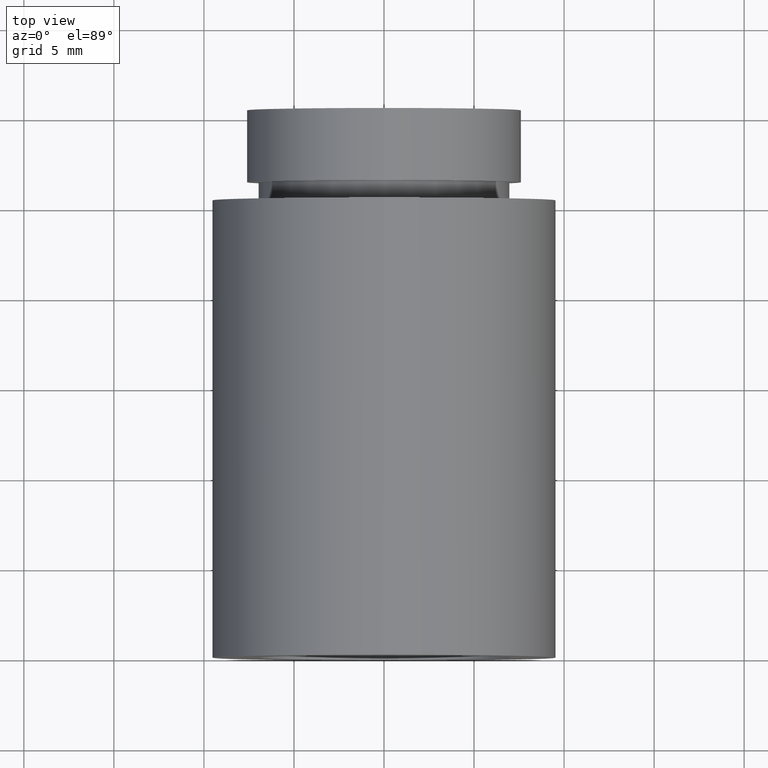
[diagram: clean part render]
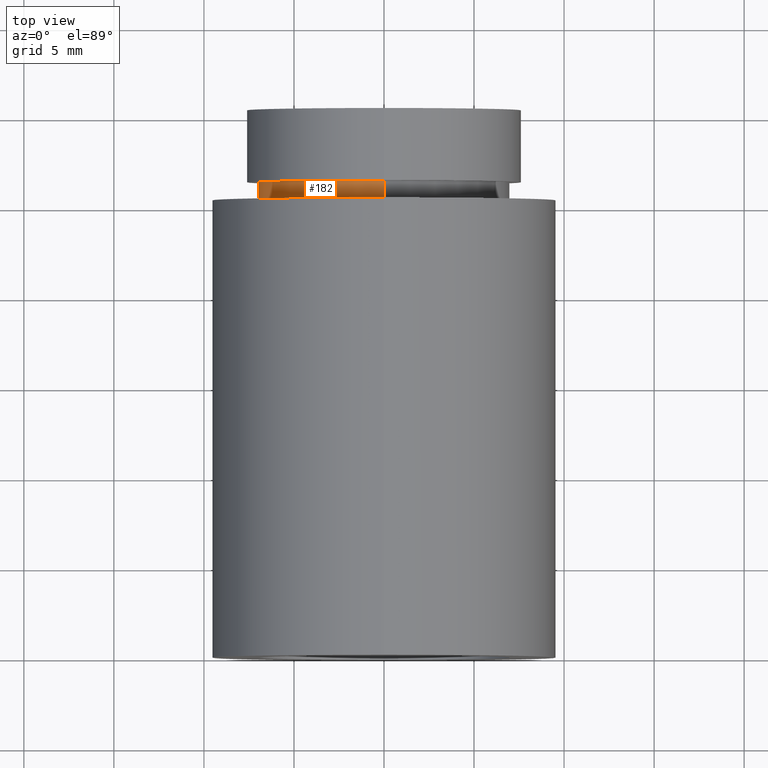
[diagram: same view with one face highlighted and labeled with its STEP entity id]
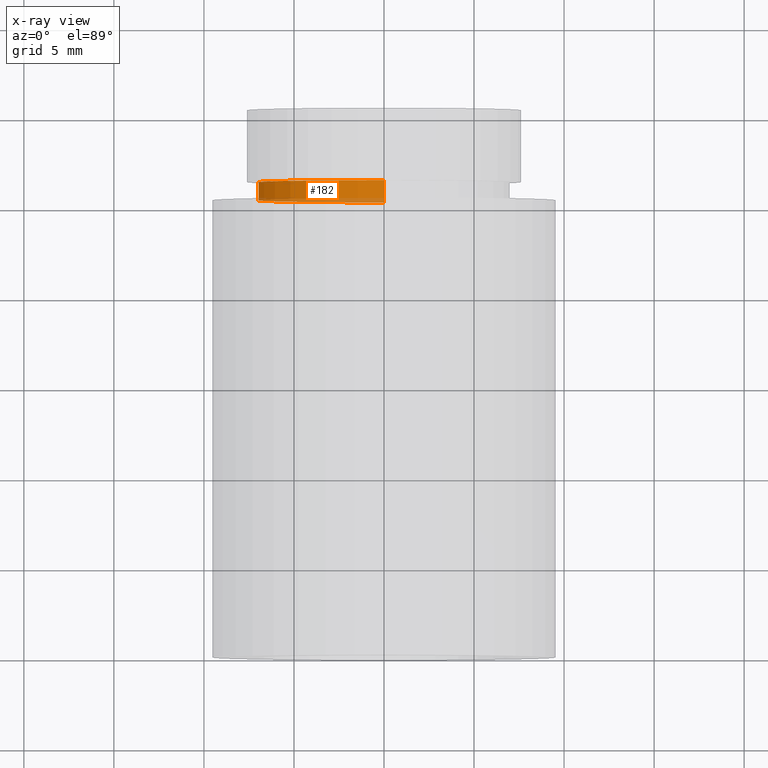
[diagram: x-ray of the same camera — body ghosted, the highlighted face saturated]
A machine part, top view. The second image highlights one B-rep face of the part: STEP entity #182.
The next image is the same camera in x-ray: the body ghosted, the highlighted face saturated — about 17% of this face is hidden behind the body in this view.
In plain terms, the highlighted cylindrical surface (partial cylindrical patch) has radius 7 mm, axis along (-0, 1, -0).
Its self-contained STEP definition (entity closure, byte-faithful):
#4 = VECTOR ( 'NONE', #300, 1000.000000000000000 ) ;
#14 = CARTESIAN_POINT ( 'NONE',  ( 0.0000000000000000000, 26.39999999999997700, 0.0000000000000000000 ) ) ;
#35 = DIRECTION ( 'NONE',  ( 0.0000000000000000000, 0.0000000000000000000, 1.000000000000000000 ) ) ;
#61 = DIRECTION ( 'NONE',  ( 0.0000000000000000000, 0.0000000000000000000, 1.000000000000000000 ) ) ;
#71 = EDGE_CURVE ( 'NONE', #258, #616, #601, .T. ) ;
#87 = AXIS2_PLACEMENT_3D ( 'NONE', #583, #346, #253 ) ;
#114 = EDGE_CURVE ( 'NONE', #204, #132, #317, .T. ) ;
#128 = CARTESIAN_POINT ( 'NONE',  ( 0.0000000000000000000, 25.39999999999997700, 7.000000000000015100 ) ) ;
#132 = VERTEX_POINT ( 'NONE', #533 ) ;
#142 = EDGE_LOOP ( 'NONE', ( #452, #536, #320, #394 ) ) ;
#182 = ADVANCED_FACE ( 'NONE', ( #611 ), #553, .T. ) ;
#193 = CARTESIAN_POINT ( 'NONE',  ( 8.572527594031490900E-016, 26.39999999999997700, -7.000000000000015100 ) ) ;
#204 = VERTEX_POINT ( 'NONE', #128 ) ;
#216 = DIRECTION ( 'NONE',  ( -0.0000000000000000000, 1.000000000000000000, -0.0000000000000000000 ) ) ;
#237 = AXIS2_PLACEMENT_3D ( 'NONE', #14, #295, #61 ) ;
#246 = VECTOR ( 'NONE', #400, 1000.000000000000000 ) ;
#253 = DIRECTION ( 'NONE',  ( 0.0000000000000000000, 0.0000000000000000000, 1.000000000000000000 ) ) ;
#258 = VERTEX_POINT ( 'NONE', #547 ) ;
#274 = CIRCLE ( 'NONE', #87, 7.000000000000015100 ) ;
#295 = DIRECTION ( 'NONE',  ( -0.0000000000000000000, 1.000000000000000000, -0.0000000000000000000 ) ) ;
#300 = DIRECTION ( 'NONE',  ( -0.0000000000000000000, 1.000000000000000000, -0.0000000000000000000 ) ) ;
#317 = LINE ( 'NONE', #401, #246 ) ;
#320 = ORIENTED_EDGE ( 'NONE', *, *, #114, .T. ) ;
#346 = DIRECTION ( 'NONE',  ( -0.0000000000000000000, 1.000000000000000000, -0.0000000000000000000 ) ) ;
#394 = ORIENTED_EDGE ( 'NONE', *, *, #487, .F. ) ;
#400 = DIRECTION ( 'NONE',  ( -0.0000000000000000000, 1.000000000000000000, -0.0000000000000000000 ) ) ;
#401 = CARTESIAN_POINT ( 'NONE',  ( 0.0000000000000000000, 161.3761669434274500, 7.000000000000015100 ) ) ;
#403 = CARTESIAN_POINT ( 'NONE',  ( 8.572527594031490900E-016, 161.3761669434274500, -7.000000000000015100 ) ) ;
#412 = CARTESIAN_POINT ( 'NONE',  ( 0.0000000000000000000, 161.3761669434274500, 0.0000000000000000000 ) ) ;
#452 = ORIENTED_EDGE ( 'NONE', *, *, #71, .F. ) ;
#487 = EDGE_CURVE ( 'NONE', #616, #132, #515, .T. ) ;
#515 = CIRCLE ( 'NONE', #237, 7.000000000000015100 ) ;
#522 = AXIS2_PLACEMENT_3D ( 'NONE', #412, #216, #35 ) ;
#533 = CARTESIAN_POINT ( 'NONE',  ( 0.0000000000000000000, 26.39999999999997700, 7.000000000000015100 ) ) ;
#536 = ORIENTED_EDGE ( 'NONE', *, *, #590, .T. ) ;
#547 = CARTESIAN_POINT ( 'NONE',  ( 8.572527594031490900E-016, 25.39999999999997700, -7.000000000000015100 ) ) ;
#553 = CYLINDRICAL_SURFACE ( 'NONE', #522, 7.000000000000015100 ) ;
#583 = CARTESIAN_POINT ( 'NONE',  ( 0.0000000000000000000, 25.39999999999997700, 0.0000000000000000000 ) ) ;
#590 = EDGE_CURVE ( 'NONE', #258, #204, #274, .T. ) ;
#601 = LINE ( 'NONE', #403, #4 ) ;
#611 = FACE_OUTER_BOUND ( 'NONE', #142, .T. ) ;
#616 = VERTEX_POINT ( 'NONE', #193 ) ;